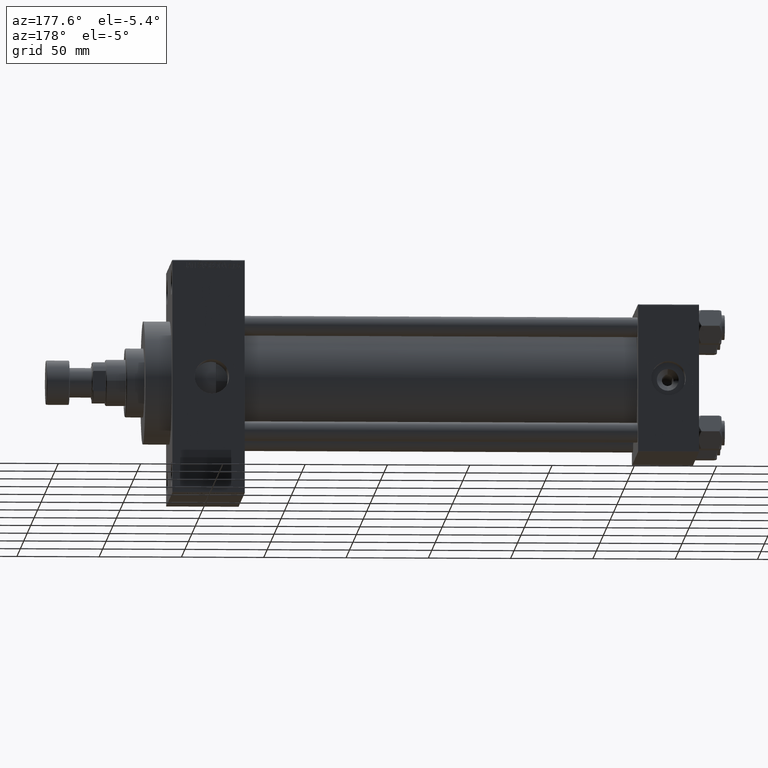
[diagram: clean part render]
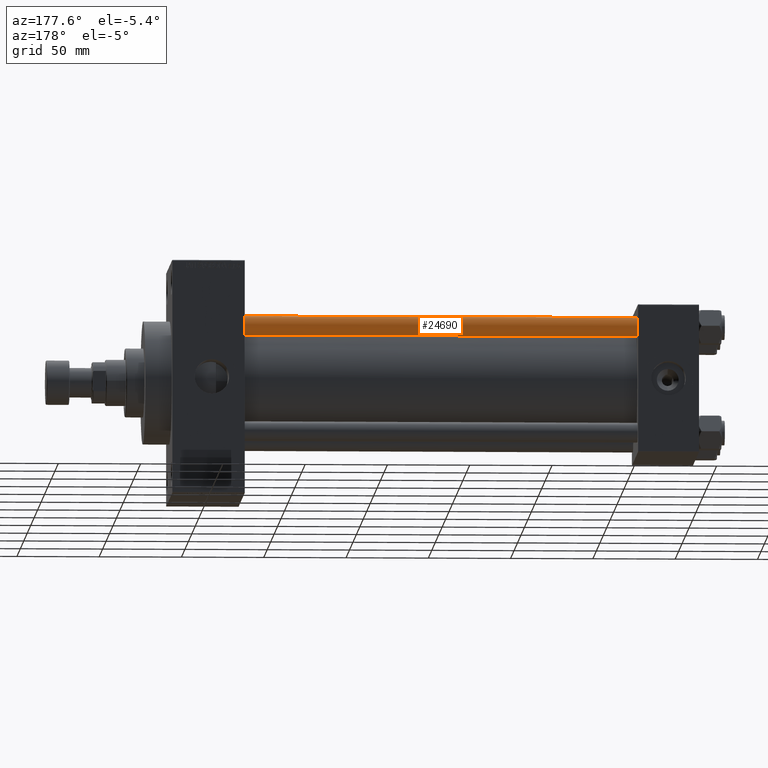
[diagram: same view with one face highlighted and labeled with its STEP entity id]
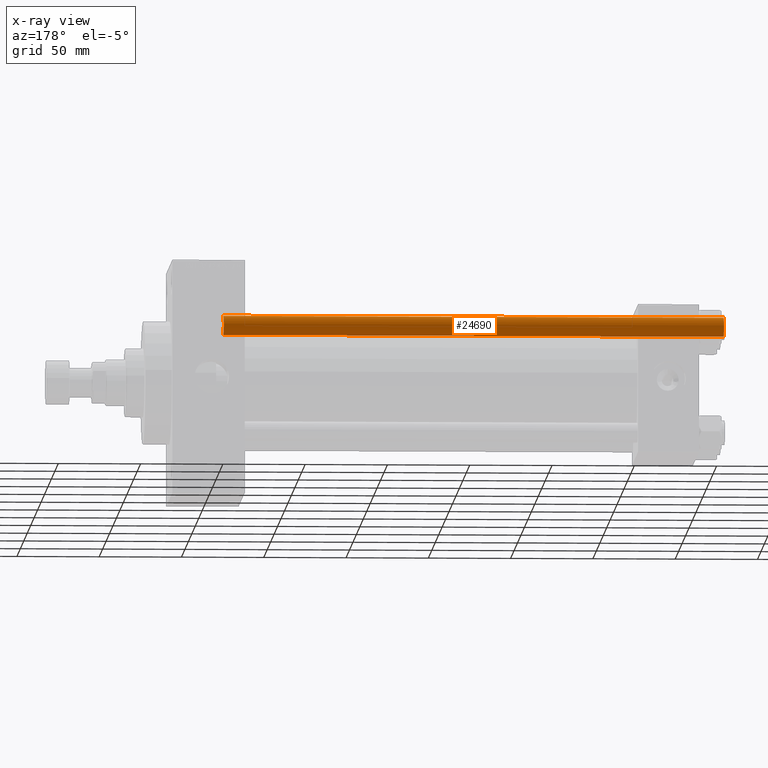
[diagram: x-ray of the same camera — body ghosted, the highlighted face saturated]
A machine part, auxiliary view. The second image highlights one B-rep face of the part: STEP entity #24690.
The next image is the same camera in x-ray: the body ghosted, the highlighted face saturated — about 0% of this face is hidden behind the body in this view.
In plain terms, the highlighted cylindrical surface (edge-blend (fillet) strip) has radius 6 mm, axis along (-1, -0, 0).
Its self-contained STEP definition (entity closure, byte-faithful):
#581 = DIRECTION ( 'NONE',  ( -0.000000000000000000, -0.000000000000000000, 1.000000000000000000 ) ) ;
#1947 = DIRECTION ( 'NONE',  ( -0.000000000000000000, -0.000000000000000000, -1.000000000000000000 ) ) ;
#2331 = EDGE_CURVE ( 'NONE', #22847, #14745, #30606, .T. ) ;
#4190 = CARTESIAN_POINT ( 'NONE',  ( 0.000000000000000000, 0.000000000000000000, 0.5000000000000004441 ) ) ;
#5859 = CARTESIAN_POINT ( 'NONE',  ( -6.000000000000000888, 0.000000000000000000, 0.5000000000000004441 ) ) ;
#6838 = VECTOR ( 'NONE', #1947, 1000.000000000000000 ) ;
#7296 = DIRECTION ( 'NONE',  ( 1.000000000000000000, 0.000000000000000000, 0.000000000000000000 ) ) ;
#9181 = ORIENTED_EDGE ( 'NONE', *, *, #46627, .T. ) ;
#9926 = CARTESIAN_POINT ( 'NONE',  ( 6.000000000000000888, 7.347880794884120722E-16, 0.5000000000000004441 ) ) ;
#10045 = AXIS2_PLACEMENT_3D ( 'NONE', #4190, #581, #15256 ) ;
#11187 = DIRECTION ( 'NONE',  ( -0.000000000000000000, -0.000000000000000000, -1.000000000000000000 ) ) ;
#13570 = CARTESIAN_POINT ( 'NONE',  ( 0.000000000000000000, 0.000000000000000000, 304.5000000000000000 ) ) ;
#14022 = ORIENTED_EDGE ( 'NONE', *, *, #2331, .T. ) ;
#14053 = DIRECTION ( 'NONE',  ( 0.000000000000000000, 0.000000000000000000, -1.000000000000000000 ) ) ;
#14644 = CARTESIAN_POINT ( 'NONE',  ( 6.000000000000000888, 7.347880794884120722E-16, 304.5000000000000000 ) ) ;
#14745 = VERTEX_POINT ( 'NONE', #9926 ) ;
#14812 = CYLINDRICAL_SURFACE ( 'NONE', #42255, 6.000000000000000888 ) ;
#15256 = DIRECTION ( 'NONE',  ( 1.000000000000000000, 0.000000000000000000, 0.000000000000000000 ) ) ;
#17571 = AXIS2_PLACEMENT_3D ( 'NONE', #13570, #14053, #7296 ) ;
#17708 = FACE_OUTER_BOUND ( 'NONE', #31858, .T. ) ;
#21261 = LINE ( 'NONE', #31877, #22464 ) ;
#22464 = VECTOR ( 'NONE', #35754, 1000.000000000000000 ) ;
#22847 = VERTEX_POINT ( 'NONE', #14644 ) ;
#24690 = ADVANCED_FACE ( 'NONE', ( #17708 ), #14812, .T. ) ;
#24876 = EDGE_CURVE ( 'NONE', #37486, #22847, #41453, .T. ) ;
#25851 = CARTESIAN_POINT ( 'NONE',  ( -6.000000000000000888, 0.000000000000000000, 304.5000000000000000 ) ) ;
#26970 = CIRCLE ( 'NONE', #10045, 6.000000000000000888 ) ;
#29508 = CARTESIAN_POINT ( 'NONE',  ( 0.000000000000000000, 0.000000000000000000, 305.0000000000000000 ) ) ;
#30606 = LINE ( 'NONE', #45345, #6838 ) ;
#30916 = ORIENTED_EDGE ( 'NONE', *, *, #36122, .F. ) ;
#31858 = EDGE_LOOP ( 'NONE', ( #36459, #14022, #9181, #30916 ) ) ;
#31877 = CARTESIAN_POINT ( 'NONE',  ( -6.000000000000000888, 0.000000000000000000, 305.0000000000000000 ) ) ;
#35754 = DIRECTION ( 'NONE',  ( -0.000000000000000000, -0.000000000000000000, -1.000000000000000000 ) ) ;
#36122 = EDGE_CURVE ( 'NONE', #37486, #36219, #21261, .T. ) ;
#36219 = VERTEX_POINT ( 'NONE', #5859 ) ;
#36459 = ORIENTED_EDGE ( 'NONE', *, *, #24876, .T. ) ;
#37486 = VERTEX_POINT ( 'NONE', #25851 ) ;
#39439 = DIRECTION ( 'NONE',  ( -1.000000000000000000, 0.000000000000000000, 0.000000000000000000 ) ) ;
#41453 = CIRCLE ( 'NONE', #17571, 6.000000000000000888 ) ;
#42255 = AXIS2_PLACEMENT_3D ( 'NONE', #29508, #11187, #39439 ) ;
#45345 = CARTESIAN_POINT ( 'NONE',  ( 6.000000000000000888, 7.347880794884120722E-16, 305.0000000000000000 ) ) ;
#46627 = EDGE_CURVE ( 'NONE', #14745, #36219, #26970, .T. ) ;